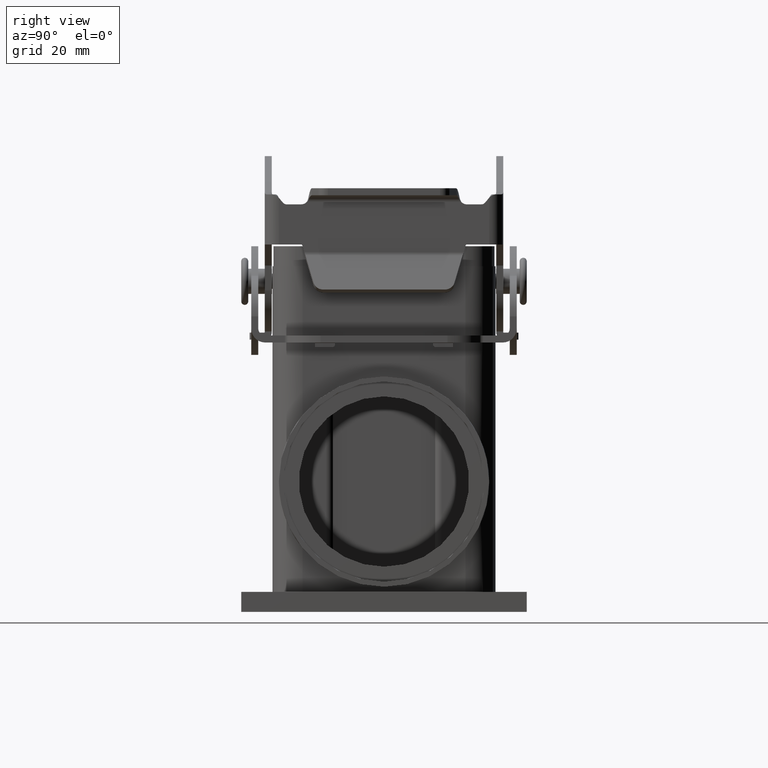
[diagram: clean part render]
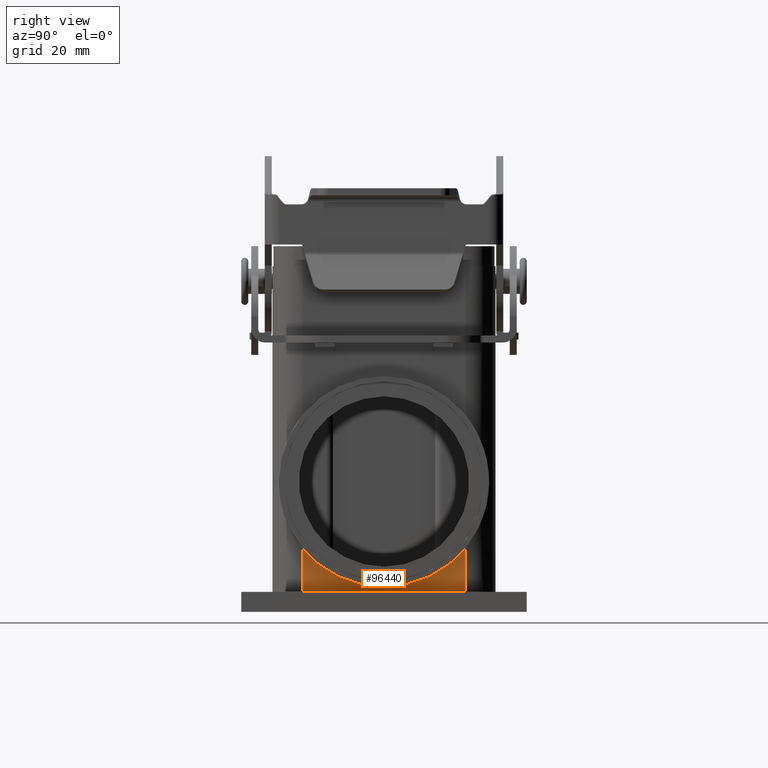
[diagram: same view with one face highlighted and labeled with its STEP entity id]
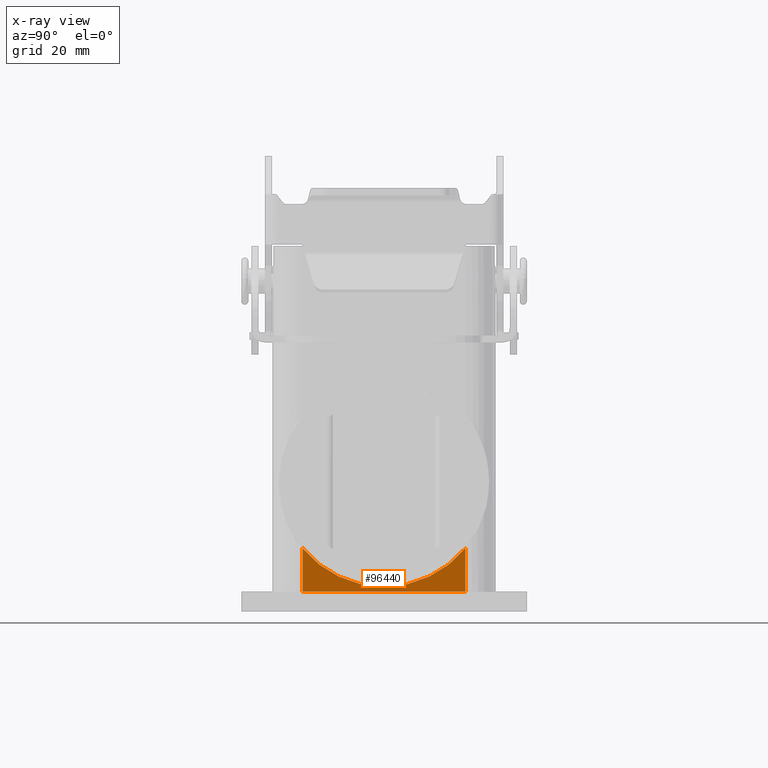
[diagram: x-ray of the same camera — body ghosted, the highlighted face saturated]
A machine part, right view. The second image highlights one B-rep face of the part: STEP entity #96440.
The next image is the same camera in x-ray: the body ghosted, the highlighted face saturated — about 0% of this face is hidden behind the body in this view.
In plain terms, the highlighted planar face has unit normal (1, 0, 0).
Its self-contained STEP definition (entity closure, byte-faithful):
#23580=CARTESIAN_POINT('',(21.5,16.25,-53.301785594423));
#23590=VERTEX_POINT('',#23580);
#23620=CARTESIAN_POINT('',(21.5,0.,-40.));
#23630=DIRECTION('',(-1.,0.,0.));
#23640=DIRECTION('',(0.,-1.,0.));
#23650=AXIS2_PLACEMENT_3D('',#23620,#23630,#23640);
#23660=CIRCLE('',#23650,21.);
#23670=CARTESIAN_POINT('',(21.5,-16.25,-53.301785594423));
#23680=VERTEX_POINT('',#23670);
#23690=EDGE_CURVE('',#23590,#23680,#23660,.T.);
#55770=CARTESIAN_POINT('',(21.5,-16.25,-62.));
#55780=DIRECTION('',(0.,0.,1.));
#55790=VECTOR('',#55780,8.69821440557697);
#55800=LINE('',#55770,#55790);
#55810=CARTESIAN_POINT('',(21.5,-16.25,-62.));
#55820=VERTEX_POINT('',#55810);
#55830=EDGE_CURVE('',#55820,#23680,#55800,.T.);
#96070=CARTESIAN_POINT('',(21.5,16.25,-62.));
#96080=VERTEX_POINT('',#96070);
#96110=CARTESIAN_POINT('',(21.5,16.25,-62.));
#96120=DIRECTION('',(0.,0.,1.));
#96130=VECTOR('',#96120,8.69821440557697);
#96140=LINE('',#96110,#96130);
#96150=EDGE_CURVE('',#96080,#23590,#96140,.T.);
#96280=CARTESIAN_POINT('',(21.5,16.25,-66.));
#96290=DIRECTION('',(1.,0.,0.));
#96300=DIRECTION('',(0.,0.,-1.));
#96310=AXIS2_PLACEMENT_3D('',#96280,#96290,#96300);
#96320=PLANE('',#96310);
#96330=ORIENTED_EDGE('',*,*,#96150,.T.);
#96340=CARTESIAN_POINT('',(21.5,16.25,-62.));
#96350=DIRECTION('',(0.,-1.,0.));
#96360=VECTOR('',#96350,32.5);
#96370=LINE('',#96340,#96360);
#96380=EDGE_CURVE('',#96080,#55820,#96370,.T.);
#96390=ORIENTED_EDGE('',*,*,#96380,.F.);
#96400=ORIENTED_EDGE('',*,*,#55830,.F.);
#96410=ORIENTED_EDGE('',*,*,#23690,.T.);
#96420=EDGE_LOOP('',(#96410,#96400,#96390,#96330));
#96430=FACE_OUTER_BOUND('',#96420,.T.);
#96440=ADVANCED_FACE('',(#96430),#96320,.T.);